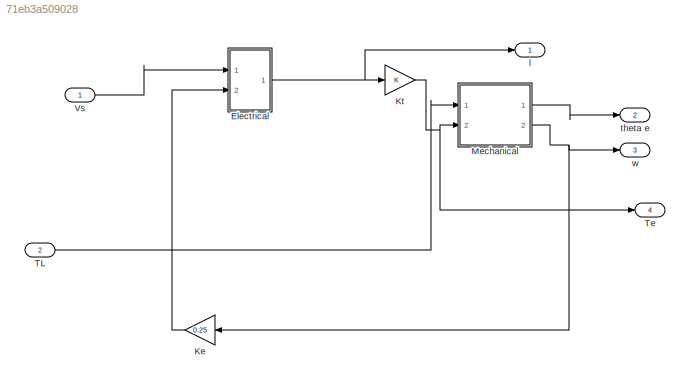
MODEL slx_71eb3a509028
KIND model
CONFIG AbsTol = auto
CONFIG EnableMultiTasking = off
CONFIG FixedStep = auto
CONFIG MaxStep = auto
CONFIG MinStep = auto
CONFIG RelTol = 1e-3
CONFIG SampleTimeConstraint = Unconstrained
CONFIG SolverName = VariableStepAuto
CONFIG StartTime = 0.0
CONFIG StopTime = 10.0
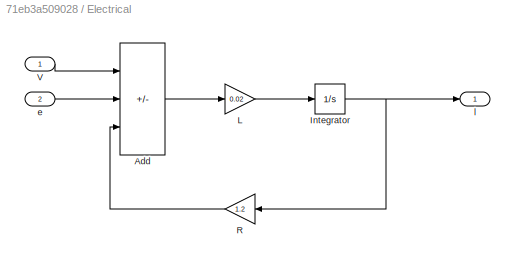
BLOCK [SubSystem] Electrical
  Ports = [2, 1]
  RequestExecContextInheritance = off
BLOCK [Sum] Electrical/Add
  IconShape = rectangular
  Inputs = +--
  Ports = [3, 1]
BLOCK [Integrator] Electrical/Integrator
  Ports = [1, 1]
BLOCK [Gain] Electrical/L
  Gain = 0.02
BLOCK [Gain] Electrical/R
  Gain = 1.2
BLOCK [Inport] Electrical/V
BLOCK [Inport] Electrical/e
  Port = 2
BLOCK [Outport] Electrical/l
BLOCK [Gain] Ke
  Gain = 0.25
BLOCK [Gain] Kt
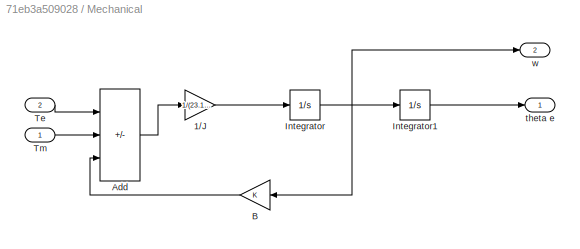
BLOCK [SubSystem] Mechanical
  Ports = [2, 2]
  RequestExecContextInheritance = off
BLOCK [Gain] Mechanical/1//J
  Gain = 1/(23.16*10^-4)
BLOCK [Sum] Mechanical/Add
  IconShape = rectangular
  Inputs = +--
  Ports = [3, 1]
BLOCK [Gain] Mechanical/B
BLOCK [Integrator] Mechanical/Integrator
  Ports = [1, 1]
BLOCK [Integrator] Mechanical/Integrator1
  Ports = [1, 1]
BLOCK [Inport] Mechanical/Te
  Port = 2
BLOCK [Inport] Mechanical/Tm
BLOCK [Outport] Mechanical/theta e
BLOCK [Outport] Mechanical/w
  Port = 2
BLOCK [Inport] TL
  Port = 2
BLOCK [Outport] Te
  Port = 4
BLOCK [Inport] Vs
BLOCK [Outport] l
BLOCK [Outport] theta e
  Port = 2
BLOCK [Outport] w
  Port = 3
LINE Electrical/Add:1 -> Electrical/L:1
NET Electrical/Integrator:1 -> Electrical/R:1, Electrical/l:1
LINE Electrical/L:1 -> Electrical/Integrator:1
LINE Electrical/R:1 -> Electrical/Add:3
LINE Electrical/V:1 -> Electrical/Add:1
LINE Electrical/e:1 -> Electrical/Add:2
NET Electrical:1 -> Kt:1, l:1
LINE Ke:1 -> Electrical:2
NET Kt:1 -> Mechanical:2, Te:1
LINE Mechanical/1//J:1 -> Mechanical/Integrator:1
LINE Mechanical/Add:1 -> Mechanical/1//J:1
LINE Mechanical/B:1 -> Mechanical/Add:3
LINE Mechanical/Integrator1:1 -> Mechanical/theta e:1
NET Mechanical/Integrator:1 -> Mechanical/B:1, Mechanical/Integrator1:1, Mechanical/w:1
LINE Mechanical/Te:1 -> Mechanical/Add:1
LINE Mechanical/Tm:1 -> Mechanical/Add:2
LINE Mechanical:1 -> theta e:1
NET Mechanical:2 -> Ke:1, w:1
LINE TL:1 -> Mechanical:1
LINE Vs:1 -> Electrical:1
note: NET lines group one-source signal fan-out (src -> all destinations, sorted); 1:1 wires keep LINE
